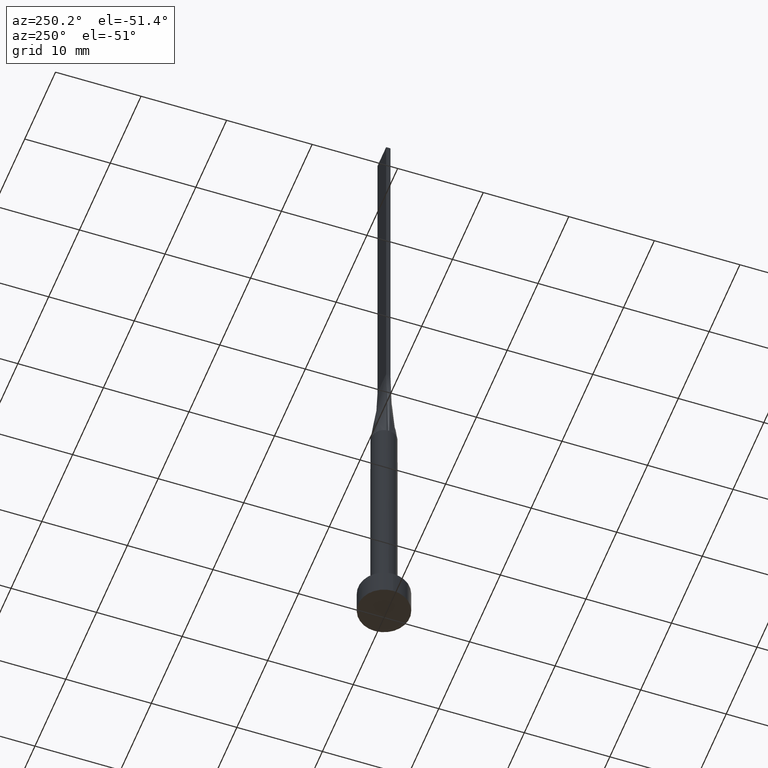
[diagram: clean part render]
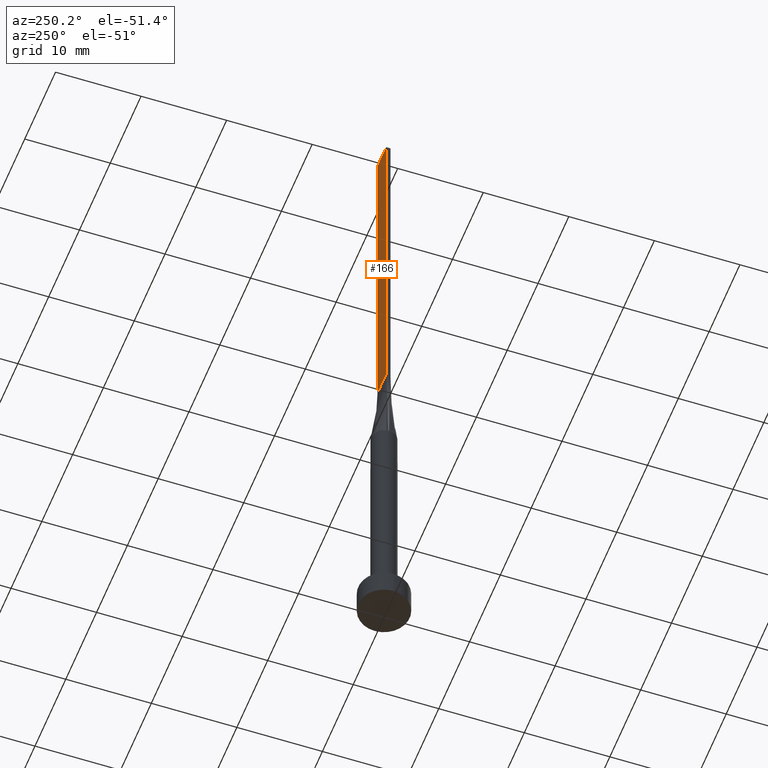
[diagram: same view with one face highlighted and labeled with its STEP entity id]
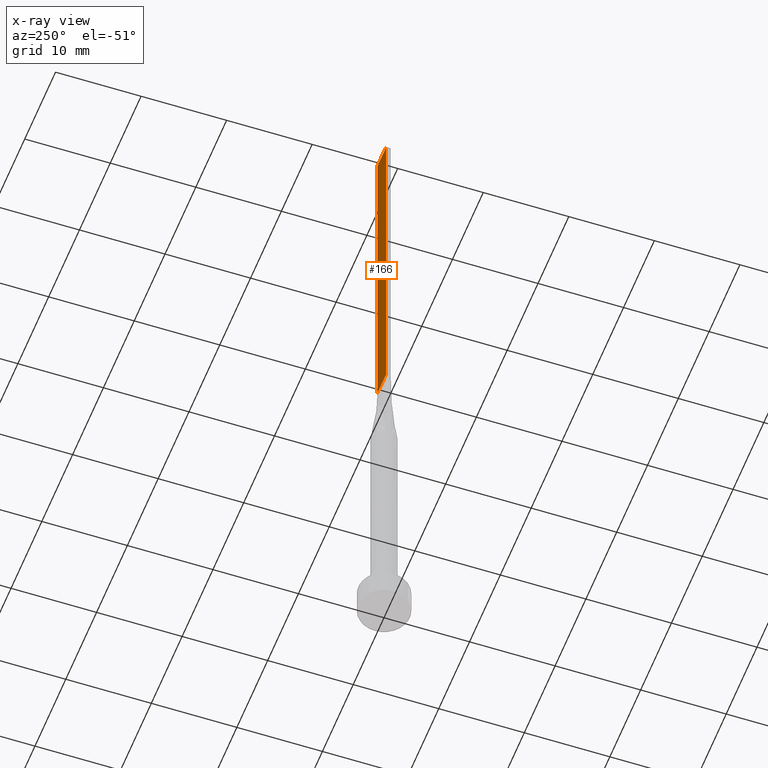
[diagram: x-ray of the same camera — body ghosted, the highlighted face saturated]
A machine part, auxiliary view. The second image highlights one B-rep face of the part: STEP entity #166.
The next image is the same camera in x-ray: the body ghosted, the highlighted face saturated — about 0% of this face is hidden behind the body in this view.
In plain terms, the highlighted planar face has unit normal (0, -1, 0).
Its self-contained STEP definition (entity closure, byte-faithful):
#13 = VECTOR ( 'NONE', #484, 1000.000000000000000 ) ;
#23 = VECTOR ( 'NONE', #240, 1000.000000000000000 ) ;
#26 = PLANE ( 'NONE',  #150 ) ;
#50 = CARTESIAN_POINT ( 'NONE',  ( -1.399999999999999911, 0.2500000000000002220, 40.00000000000000000 ) ) ;
#69 = CARTESIAN_POINT ( 'NONE',  ( 1.399999999999999911, 0.2500000000000002220, 80.00000000000000000 ) ) ;
#86 = CARTESIAN_POINT ( 'NONE',  ( -1.399999999999999911, 0.2500000000000002220, 80.00000000000000000 ) ) ;
#89 = ORIENTED_EDGE ( 'NONE', *, *, #163, .T. ) ;
#123 = CARTESIAN_POINT ( 'NONE',  ( 1.399999999999999911, 0.2500000000000002220, 80.00000000000000000 ) ) ;
#126 = DIRECTION ( 'NONE',  ( 0.000000000000000000, -0.000000000000000000, -1.000000000000000000 ) ) ;
#149 = ORIENTED_EDGE ( 'NONE', *, *, #515, .T. ) ;
#150 = AXIS2_PLACEMENT_3D ( 'NONE', #527, #560, #126 ) ;
#152 = EDGE_LOOP ( 'NONE', ( #149, #249, #303, #89 ) ) ;
#163 = EDGE_CURVE ( 'NONE', #258, #469, #392, .T. ) ;
#165 = FACE_OUTER_BOUND ( 'NONE', #152, .T. ) ;
#166 = ADVANCED_FACE ( 'NONE', ( #165 ), #26, .F. ) ;
#168 = CARTESIAN_POINT ( 'NONE',  ( -1.399999999999999911, 0.2500000000000002220, 40.00000000000000000 ) ) ;
#219 = EDGE_CURVE ( 'NONE', #258, #336, #477, .T. ) ;
#240 = DIRECTION ( 'NONE',  ( -1.000000000000000000, -0.000000000000000000, -0.000000000000000000 ) ) ;
#249 = ORIENTED_EDGE ( 'NONE', *, *, #402, .F. ) ;
#258 = VERTEX_POINT ( 'NONE', #123 ) ;
#303 = ORIENTED_EDGE ( 'NONE', *, *, #219, .F. ) ;
#312 = CARTESIAN_POINT ( 'NONE',  ( 1.399999999999999911, 0.2500000000000002220, 40.00000000000000000 ) ) ;
#324 = LINE ( 'NONE', #50, #23 ) ;
#336 = VERTEX_POINT ( 'NONE', #86 ) ;
#392 = LINE ( 'NONE', #564, #546 ) ;
#402 = EDGE_CURVE ( 'NONE', #336, #552, #577, .T. ) ;
#469 = VERTEX_POINT ( 'NONE', #312 ) ;
#477 = LINE ( 'NONE', #69, #478 ) ;
#478 = VECTOR ( 'NONE', #525, 1000.000000000000000 ) ;
#484 = DIRECTION ( 'NONE',  ( -0.000000000000000000, -0.000000000000000000, -1.000000000000000000 ) ) ;
#515 = EDGE_CURVE ( 'NONE', #469, #552, #324, .T. ) ;
#522 = DIRECTION ( 'NONE',  ( -0.000000000000000000, -0.000000000000000000, -1.000000000000000000 ) ) ;
#525 = DIRECTION ( 'NONE',  ( -1.000000000000000000, 0.000000000000000000, 0.000000000000000000 ) ) ;
#527 = CARTESIAN_POINT ( 'NONE',  ( 1.399999999999999911, 0.2500000000000002220, 80.00000000000000000 ) ) ;
#531 = CARTESIAN_POINT ( 'NONE',  ( -1.399999999999999911, 0.2500000000000002220, 80.00000000000000000 ) ) ;
#546 = VECTOR ( 'NONE', #522, 1000.000000000000000 ) ;
#552 = VERTEX_POINT ( 'NONE', #168 ) ;
#560 = DIRECTION ( 'NONE',  ( 0.000000000000000000, -1.000000000000000000, 0.000000000000000000 ) ) ;
#564 = CARTESIAN_POINT ( 'NONE',  ( 1.399999999999999911, 0.2500000000000002220, 80.00000000000000000 ) ) ;
#577 = LINE ( 'NONE', #531, #13 ) ;